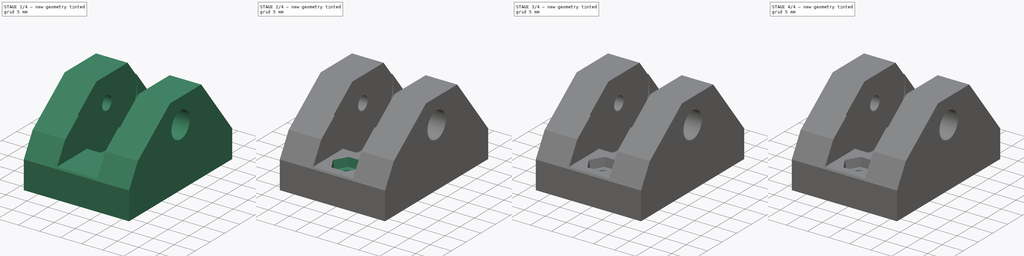
[diagram: build sequence overview — one tinted view per stage of 4, left to right]
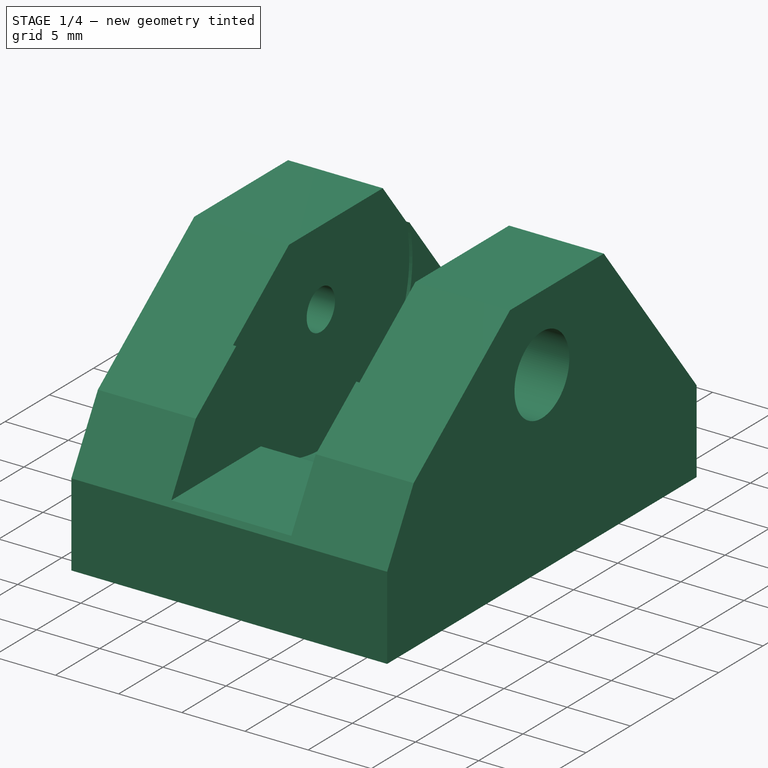
[diagram: stage 1 of 4 — iso view after this stage's code; geometry added in this stage tinted green]
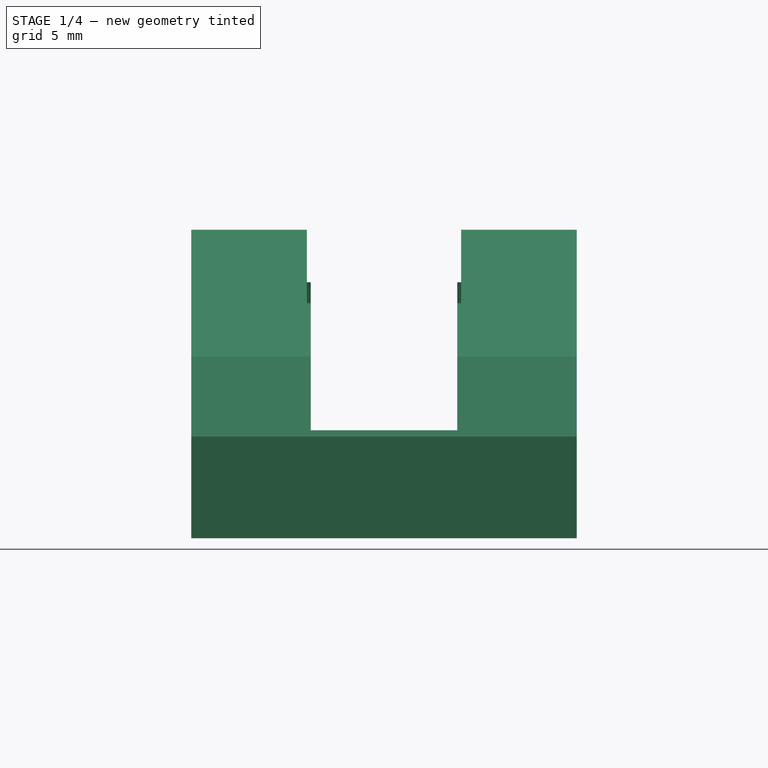
[diagram: stage 1 of 4 — front view after this stage's code; geometry added in this stage tinted green]
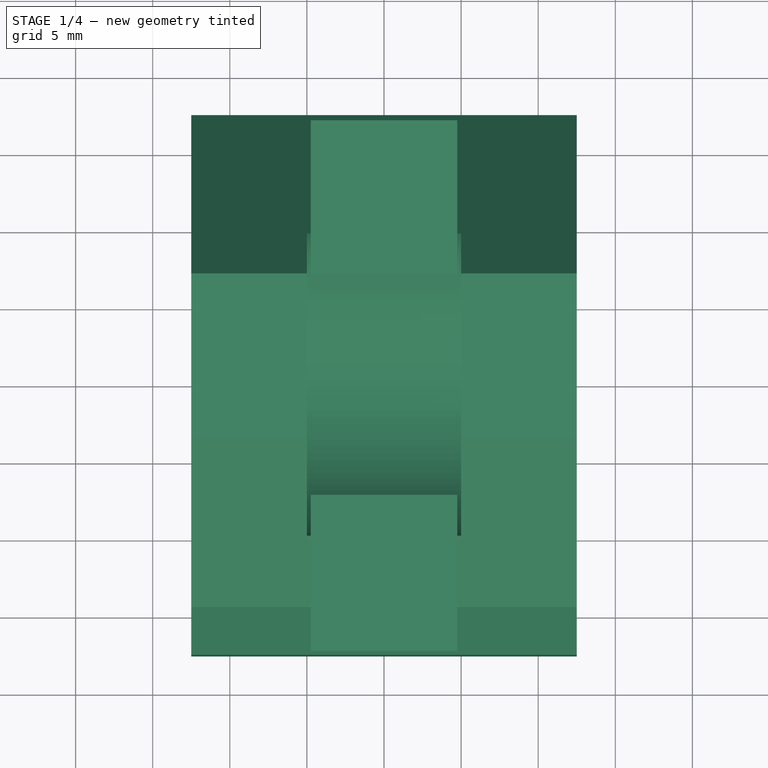
[diagram: stage 1 of 4 — top view after this stage's code; geometry added in this stage tinted green]
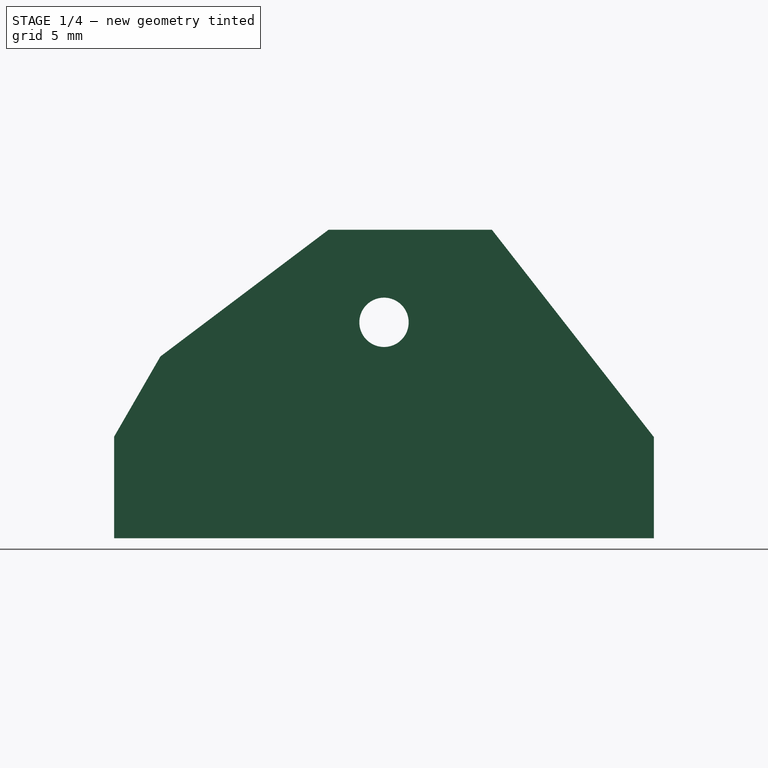
[diagram: stage 1 of 4 — right view after this stage's code; geometry added in this stage tinted green]
FCSTD DOCUMENT  (FreeCAD 0.22R38231 (Git))
Label: _Y-Belt_Idler
License: Creative Commons Attribution 4.0
LicenseURL: https://creativecommons.org/licenses/by/4.0/
objects: Sketcher::SketchObject×15, PartDesign::Pocket×5, PartDesign::Groove×3, PartDesign::SubtractiveLoft×3, PartDesign::Pad×1, PartDesign::Body×1
note: 52 computed .brp shape members not serialized (recipe doc carries the construction recipe); baked Part::Feature solids carry a one-line shape summary decoded from their .brp

FEATURE [Sketcher::SketchObject] Sketch
  AttachmentSupport = -> [YZ_Plane]
  FullyConstrained = true
  MapMode = 5
  Placement = pos=(0,0,0) rot=(0.57735,0.57735,0.57735;2.0944rad)
  sketch-geometry (8):
    g0: LineSegment StartX=-17.5 StartY=0 StartZ=0 EndX=-17.5 EndY=6.59011 EndZ=0
    g1: LineSegment StartX=-17.5 StartY=6.59011 StartZ=0 EndX=-14.5 EndY=11.7863 EndZ=0
    g2: LineSegment StartX=-14.5 StartY=11.7863 StartZ=0 EndX=-3.6 EndY=20 EndZ=0
    g3: LineSegment StartX=-3.6 StartY=20 StartZ=0 EndX=7 EndY=20 EndZ=0
    g4: LineSegment StartX=7 StartY=20 StartZ=0 EndX=17.5 EndY=6.56061 EndZ=0
    g5: LineSegment StartX=17.5 StartY=6.56061 StartZ=0 EndX=17.5 EndY=0 EndZ=0
    g6: LineSegment StartX=17.5 StartY=0 StartZ=0 EndX=-17.5 EndY=0 EndZ=0
    g7: Circle CenterX=0 CenterY=14 CenterZ=0 NormalX=0 NormalY=0 NormalZ=1 AngleXU=0 Radius=1.6
  constraints (23):
    c: PointOnObject(g0,g-1)
    c: Vertical(g0)
    c: Coincident(g0,g1)
    c: Coincident(g1,g2)
    c: Coincident(g2,g3)
    c: Horizontal(g3)
    c: Coincident(g3,g4)
    c: Coincident(g4,g5)
    c: Vertical(g5)
    c: Coincident(g5,g6)
    c: Coincident(g6,g0)
    c: Diameter(g7) = 3.2
    c: PointOnObject(g7,g-2)
    c: DistanceY(g-1,g7) = 14
    c: Symmetric(g5,g0,g-2)
    c: DistanceX(g6,g6) = 35
    c: DistanceX(g2,g-1) = 3.6
    c: DistanceY(g-1,g3) = 20
    c: DistanceX(g3,g3) = 10.6
    c: Angle(g3,g4) = 2.23402
    c: Angle(g2,g3) = 2.49582
    c: Angle(g1,g2) = 2.74017
    c: DistanceX(g0,g1) = 3
FEATURE [PartDesign::Pad] Pad
  Direction = (1,0,0)
  Length = 25
  Length2 = 10
  Midplane = true
  Placement = pos=(0,0,0) rot=(1,1,1;2.0944rad)
  Profile = -> Sketch
  ReferenceAxis = -> Sketch [N_Axis]
  Refine = true
  Suppressed = false
  Type = 0
FEATURE [Sketcher::SketchObject] Sketch001
  AttachmentSupport = -> [XZ_Plane]
  FullyConstrained = true
  MapMode = 5
  Placement = pos=(0,0,0) rot=(1,0,0;1.5708rad)
  sketch-geometry (4):
    g0: LineSegment StartX=4.75 StartY=21 StartZ=0 EndX=4.75 EndY=7 EndZ=0
    g1: LineSegment StartX=4.75 StartY=7 StartZ=0 EndX=-4.75 EndY=7 EndZ=0
    g2: LineSegment StartX=-4.75 StartY=7 StartZ=0 EndX=-4.75 EndY=21 EndZ=0
    g3: LineSegment StartX=-4.75 StartY=21 StartZ=0 EndX=4.75 EndY=21 EndZ=0
  constraints (11):
    c: Coincident(g0,g1)
    c: Coincident(g1,g2)
    c: Coincident(g2,g3)
    c: Coincident(g3,g0)
    c: Vertical(g0)
    c: Vertical(g2)
    c: Symmetric(g2,g0,g-2)
    c: Horizontal(g1)
    c: DistanceX(g3,g3) = 9.5
    c: DistanceY(g-1,g1) = 7
    c: DistanceY(g2,g2) = 14
FEATURE [PartDesign::Pocket] Pocket
  BaseFeature = -> Pad
  Direction = (0,1,-2e-16)
  Length = 5
  Length2 = 5
  Midplane = true
  Placement = pos=(0,0,0) rot=(1,1,1;2.0944rad)
  Profile = -> Sketch001
  ReferenceAxis = -> Sketch001 [N_Axis]
  Refine = true
  Suppressed = false
  Type = 1
FEATURE [Sketcher::SketchObject] Sketch002
  AttachmentOffset = pos=(0,0,14) rot=(0,0,1;0rad)
  AttachmentSupport = -> [XY_Plane]
  FullyConstrained = true
  MapMode = 5
  Placement = pos=(0,0,14) rot=(0,0,1;0rad)
  expr: .AttachmentOffset.Base.z = Sketch.Constraints[13]
  sketch-geometry (8):
    g0: LineSegment StartX=-5 StartY=0 StartZ=0 EndX=12.5 EndY=0 EndZ=0
    g1: LineSegment StartX=12.5 StartY=0 StartZ=0 EndX=12.5 EndY=3.1 EndZ=0
    g2: LineSegment StartX=12.5 StartY=3.1 StartZ=0 EndX=8 EndY=3.1 EndZ=0
    g3: LineSegment StartX=8 StartY=3.1 StartZ=0 EndX=8 EndY=1.6 EndZ=0
    g4: LineSegment StartX=8 StartY=1.6 StartZ=0 EndX=5 EndY=1.6 EndZ=0
    g5: LineSegment StartX=5 StartY=1.6 StartZ=0 EndX=5 EndY=10 EndZ=0
    g6: LineSegment StartX=5 StartY=10 StartZ=0 EndX=-5 EndY=10 EndZ=0
    g7: LineSegment StartX=-5 StartY=10 StartZ=0 EndX=-5 EndY=0 EndZ=0
  constraints (23):
    c: PointOnObject(g0,g-1)
    c: PointOnObject(g0,g-1)
    c: Coincident(g0,g1)
    c: Vertical(g1)
    c: Coincident(g1,g2)
    c: Horizontal(g2)
    c: Coincident(g2,g3)
    c: Coincident(g3,g4)
    c: Horizontal(g4)
    c: Coincident(g4,g5)
    c: Vertical(g5)
    c: Coincident(g5,g6)
    c: Coincident(g6,g7)
    c: Coincident(g7,g0)
    c: Vertical(g7)
    c: DistanceY(g-1,g4) = 1.6
    c: Vertical(g3)
    c: DistanceX(g-1,g0) = 12.5
    c: DistanceX(g2,g2) = 4.5
    c: DistanceY(g1,g1) = 3.1
    c: Symmetric(g6,g5,g-2)
    c: DistanceX(g6,g6) = 10
    c: DistanceY(g7,g7) = 10
FEATURE [PartDesign::Groove] Groove
  Angle = 360
  Angle2 = 60
  Axis = (1,0,0)
  Base = (-5,0,14)
  BaseFeature = -> Pocket
  Placement = pos=(0,0,0) rot=(1,1,1;2.0944rad)
  Profile = -> Sketch002
  ReferenceAxis = -> Sketch002 [Edge1]
  Refine = true
  Suppressed = false
  Type = 0
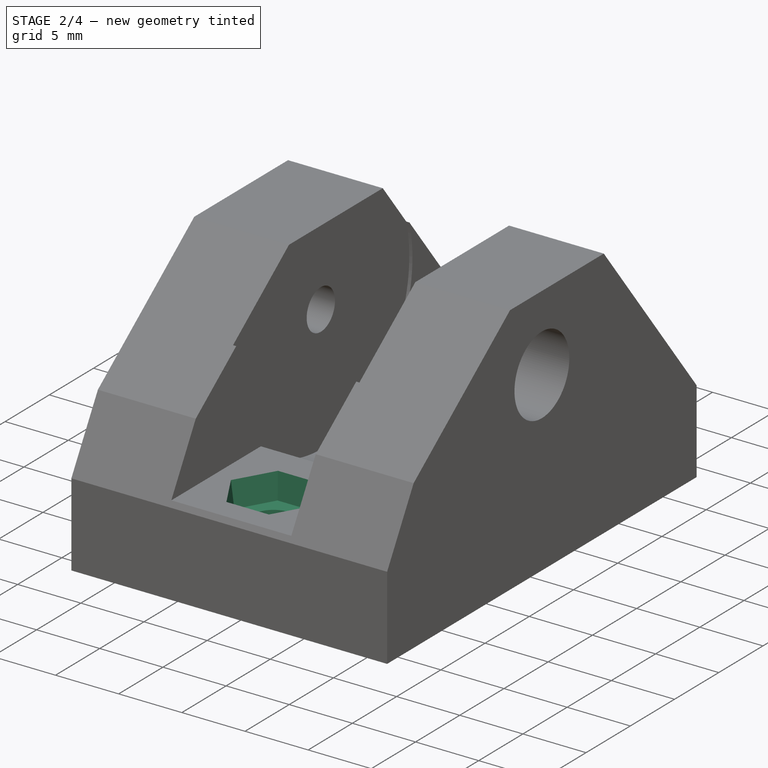
[diagram: stage 2 of 4 — iso view after this stage's code; geometry added in this stage tinted green]
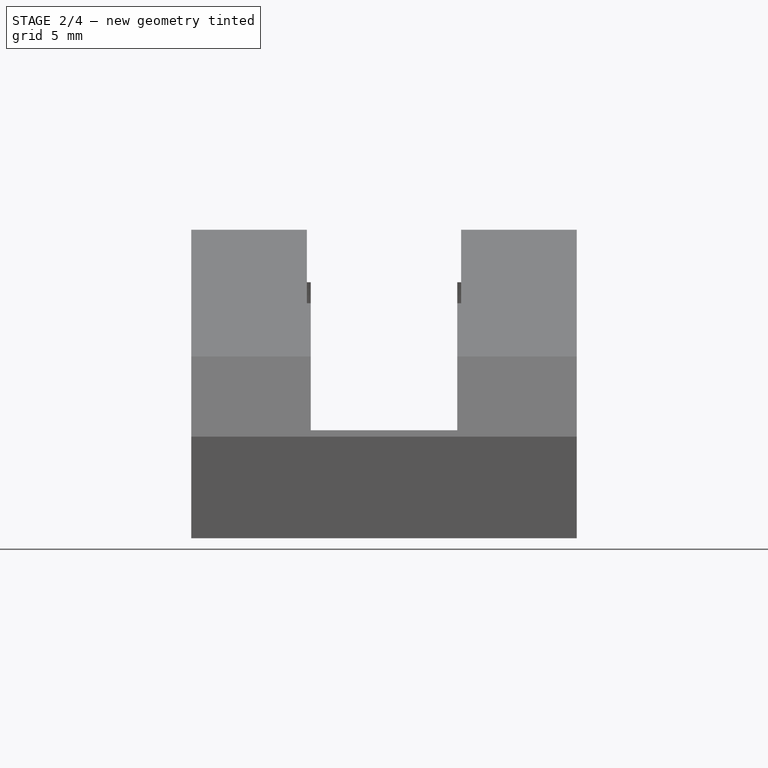
[diagram: stage 2 of 4 — front view after this stage's code; geometry added in this stage tinted green]
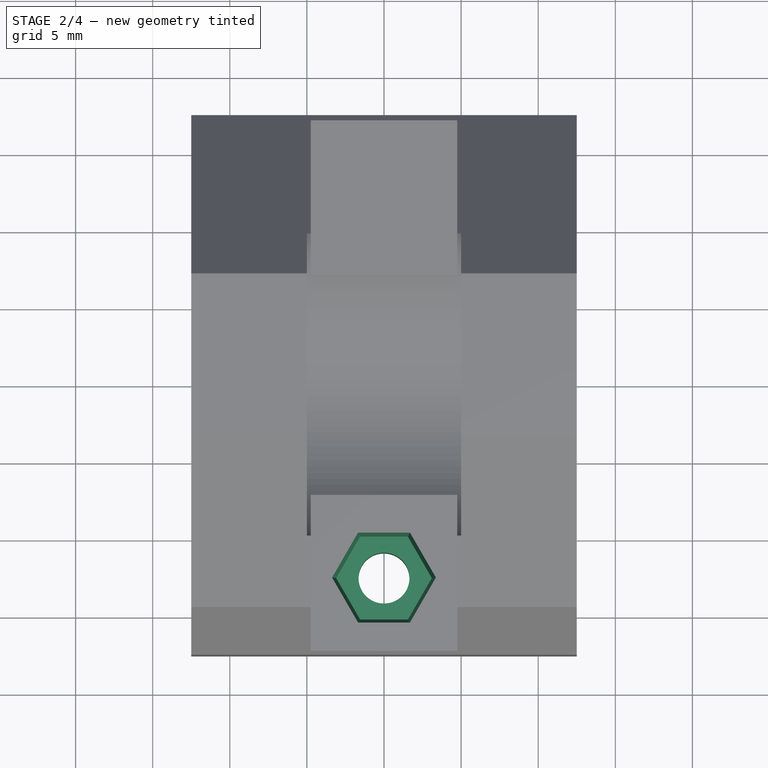
[diagram: stage 2 of 4 — top view after this stage's code; geometry added in this stage tinted green]
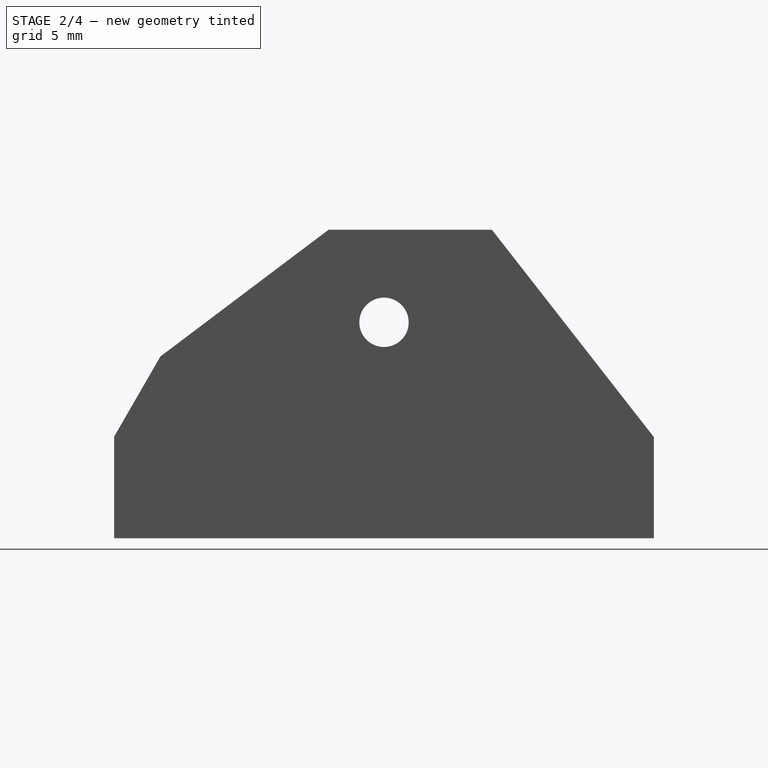
[diagram: stage 2 of 4 — right view after this stage's code; geometry added in this stage tinted green]
FEATURE [Sketcher::SketchObject] Sketch003
  AttachmentOffset = pos=(0,0,-12.5) rot=(0,0,1;0rad)
  AttachmentSupport = -> [YZ_Plane]
  FullyConstrained = true
  MapMode = 5
  Placement = pos=(-12.5,0,0) rot=(0.57735,0.57735,0.57735;2.0944rad)
  expr: .AttachmentOffset.Base.z = -Pad.Length / 2
  expr: Constraints[18] = Sketch.Constraints[13]
  sketch-geometry (7):
    g0: LineSegment StartX=-3.66271 StartY=14 StartZ=0 EndX=-1.83136 EndY=10.828 EndZ=0
    g1: LineSegment StartX=-1.83136 StartY=10.828 StartZ=0 EndX=1.83136 EndY=10.828 EndZ=0
    g2: LineSegment StartX=1.83136 StartY=10.828 StartZ=0 EndX=3.66271 EndY=14 EndZ=0
    g3: LineSegment StartX=3.66271 StartY=14 StartZ=0 EndX=1.83136 EndY=17.172 EndZ=0
    g4: LineSegment StartX=1.83136 StartY=17.172 StartZ=0 EndX=-1.83136 EndY=17.172 EndZ=0
    g5: LineSegment StartX=-1.83136 StartY=17.172 StartZ=0 EndX=-3.66271 EndY=14 EndZ=0
    g6: Circle CenterX=0 CenterY=14 CenterZ=0 NormalX=0 NormalY=0 NormalZ=1 AngleXU=0 Radius=3.66271
  constraints (17):
    c: Coincident(g0,g1)
    c: Coincident(g1,g2)
    c: Coincident(g2,g3)
    c: Coincident(g3,g4)
    c: Coincident(g4,g5)
    c: Coincident(g5,g0)
    c: Equal(g0, g1-g5) x5
    c: PointOnObject(g0,g6)
    c: PointOnObject(g1,g6)
    c: PointOnObject(g2,g6)
    c: PointOnObject(g3,g6)
    c: PointOnObject(g4,g6)
    c: PointOnObject(g5,g6)
    c: PointOnObject(g6,g-2)
    c: DistanceY(g-1,g6) = 14
    c: Horizontal(g4)
    c: DistanceY(g1,g3) = 6.344
FEATURE [Sketcher::SketchObject] Sketch004
  AttachmentOffset = pos=(0,0,-10) rot=(0,0,1;0rad)
  AttachmentSupport = -> [YZ_Plane]
  FullyConstrained = true
  MapMode = 5
  Placement = pos=(-10,0,0) rot=(0.57735,0.57735,0.57735;2.0944rad)
  expr: .AttachmentOffset.Base.z = -Pad.Length / 2 + 2.5 mm
  expr: Constraints[19] = Sketch.Constraints[13]
  sketch-geometry (7):
    g0: LineSegment StartX=-1.5499 StartY=16.6845 StartZ=0 EndX=-3.09979 EndY=14 EndZ=0
    g1: LineSegment StartX=-3.09979 StartY=14 StartZ=0 EndX=-1.5499 EndY=11.3155 EndZ=0
    g2: LineSegment StartX=-1.5499 StartY=11.3155 StartZ=0 EndX=1.5499 EndY=11.3155 EndZ=0
    g3: LineSegment StartX=1.5499 StartY=11.3155 StartZ=0 EndX=3.09979 EndY=14 EndZ=0
    g4: LineSegment StartX=3.09979 StartY=14 StartZ=0 EndX=1.5499 EndY=16.6845 EndZ=0
    g5: LineSegment StartX=1.5499 StartY=16.6845 StartZ=0 EndX=-1.5499 EndY=16.6845 EndZ=0
    g6: Circle CenterX=0 CenterY=14 CenterZ=0 NormalX=0 NormalY=0 NormalZ=1 AngleXU=0 Radius=3.09979
  constraints (17):
    c: Coincident(g0,g1)
    c: Coincident(g1,g2)
    c: Coincident(g2,g3)
    c: Coincident(g3,g4)
    c: Coincident(g4,g5)
    c: Coincident(g5,g0)
    c: Equal(g0, g1-g5) x5
    c: PointOnObject(g0,g6)
    c: PointOnObject(g1,g6)
    c: PointOnObject(g2,g6)
    c: PointOnObject(g3,g6)
    c: PointOnObject(g4,g6)
    c: PointOnObject(g5,g6)
    c: PointOnObject(g6,g-2)
    c: Horizontal(g5)
    c: DistanceY(g-1,g6) = 14
    c: DistanceY(g1,g0) = 5.369
FEATURE [PartDesign::SubtractiveLoft] SubtractiveLoft
  BaseFeature = -> Groove
  Closed = false
  Placement = pos=(0,0,0) rot=(1,1,1;2.0944rad)
  Profile = -> Sketch004
  Refine = true
  Ruled = false
  Sections = -> [Sketch003]
  Suppressed = false
FEATURE [Sketcher::SketchObject] Sketch005
  AttachmentOffset = pos=(0,0,7) rot=(0,0,1;0rad)
  AttachmentSupport = -> [XY_Plane]
  FullyConstrained = true
  MapMode = 5
  Placement = pos=(0,0,7) rot=(0,0,1;0rad)
  sketch-geometry (7):
    g0: LineSegment StartX=-1.68298 StartY=-9.585 StartZ=0 EndX=-3.36595 EndY=-12.5 EndZ=0
    g1: LineSegment StartX=-3.36595 StartY=-12.5 StartZ=0 EndX=-1.68298 EndY=-15.415 EndZ=0
    g2: LineSegment StartX=-1.68298 StartY=-15.415 StartZ=0 EndX=1.68298 EndY=-15.415 EndZ=0
    g3: LineSegment StartX=1.68298 StartY=-15.415 StartZ=0 EndX=3.36595 EndY=-12.5 EndZ=0
    g4: LineSegment StartX=3.36595 StartY=-12.5 StartZ=0 EndX=1.68298 EndY=-9.585 EndZ=0
    g5: LineSegment StartX=1.68298 StartY=-9.585 StartZ=0 EndX=-1.68298 EndY=-9.585 EndZ=0
    g6: Circle CenterX=0 CenterY=-12.5 CenterZ=0 NormalX=0 NormalY=0 NormalZ=1 AngleXU=0 Radius=3.36595
  constraints (17):
    c: Coincident(g0,g1)
    c: Coincident(g1,g2)
    c: Coincident(g2,g3)
    c: Coincident(g3,g4)
    c: Coincident(g4,g5)
    c: Coincident(g5,g0)
    c: Equal(g0, g1-g5) x5
    c: PointOnObject(g0,g6)
    c: PointOnObject(g1,g6)
    c: PointOnObject(g2,g6)
    c: PointOnObject(g3,g6)
    c: PointOnObject(g4,g6)
    c: PointOnObject(g5,g6)
    c: PointOnObject(g6,g-2)
    c: Horizontal(g5)
    c: DistanceY(g6,g-1) = 12.5
    c: DistanceY(g2,g4) = 5.83
FEATURE [Sketcher::SketchObject] Sketch006
  AttachmentOffset = pos=(0,0,5) rot=(0,0,1;0rad)
  AttachmentSupport = -> [XY_Plane]
  FullyConstrained = true
  MapMode = 5
  Placement = pos=(0,0,5) rot=(0,0,1;0rad)
  sketch-geometry (7):
    g0: LineSegment StartX=-1.55019 StartY=-9.815 StartZ=0 EndX=-3.10037 EndY=-12.5 EndZ=0
    g1: LineSegment StartX=-3.10037 StartY=-12.5 StartZ=0 EndX=-1.55019 EndY=-15.185 EndZ=0
    g2: LineSegment StartX=-1.55019 StartY=-15.185 StartZ=0 EndX=1.55019 EndY=-15.185 EndZ=0
    g3: LineSegment StartX=1.55019 StartY=-15.185 StartZ=0 EndX=3.10037 EndY=-12.5 EndZ=0
    g4: LineSegment StartX=3.10037 StartY=-12.5 StartZ=0 EndX=1.55019 EndY=-9.815 EndZ=0
    g5: LineSegment StartX=1.55019 StartY=-9.815 StartZ=0 EndX=-1.55019 EndY=-9.815 EndZ=0
    g6: Circle CenterX=0 CenterY=-12.5 CenterZ=0 NormalX=0 NormalY=0 NormalZ=1 AngleXU=0 Radius=3.10037
  constraints (17):
    c: Coincident(g0,g1)
    c: Coincident(g1,g2)
    c: Coincident(g2,g3)
    c: Coincident(g3,g4)
    c: Coincident(g4,g5)
    c: Coincident(g5,g0)
    c: Equal(g0, g1-g5) x5
    c: PointOnObject(g0,g6)
    c: PointOnObject(g1,g6)
    c: PointOnObject(g2,g6)
    c: PointOnObject(g3,g6)
    c: PointOnObject(g4,g6)
    c: PointOnObject(g5,g6)
    c: PointOnObject(g6,g-2)
    c: Horizontal(g5)
    c: DistanceY(g6,g-1) = 12.5
    c: DistanceY(g2,g4) = 5.37
FEATURE [PartDesign::SubtractiveLoft] SubtractiveLoft001
  BaseFeature = -> SubtractiveLoft
  Closed = false
  Placement = pos=(0,0,0) rot=(1,1,1;2.0944rad)
  Profile = -> Sketch006
  Refine = true
  Ruled = false
  Sections = -> [Sketch005]
  Suppressed = false
FEATURE [Sketcher::SketchObject] Sketch007
  AttachmentOffset = pos=(0,0,12.5) rot=(0,0,1;0rad)
  AttachmentSupport = -> [XZ_Plane]
  FullyConstrained = true
  MapMode = 5
  Placement = pos=(0,-12.5,2.8e-15) rot=(1,0,0;1.5708rad)
  sketch-geometry (5):
    g0: LineSegment StartX=0 StartY=7 StartZ=0 EndX=-1.65 EndY=7 EndZ=0
    g1: LineSegment StartX=-1.65 StartY=7 StartZ=0 EndX=-1.65 EndY=1 EndZ=0
    g2: LineSegment StartX=-2.07447 StartY=0 StartZ=0 EndX=0 EndY=0 EndZ=0
    g3: LineSegment StartX=0 StartY=0 StartZ=0 EndX=0 EndY=7 EndZ=0
    g4: LineSegment StartX=-1.65 StartY=1 StartZ=0 EndX=-2.07447 EndY=0 EndZ=0
  constraints (14):
    c: PointOnObject(g0,g-2)
    c: Horizontal(g0)
    c: Vertical(g1)
    c: Coincident(g2,g-1)
    c: Horizontal(g2)
    c: Coincident(g2,g3)
    c: Coincident(g3,g0)
    c: DistanceY(g3,g3) = 7
    c: Coincident(g0,g1)
    c: DistanceX(g1,g2) = 1.65
    c: Coincident(g4,g1)
    c: Coincident(g4,g2)
    c: DistanceY(g2,g1) = 1
    c: Angle(g1,g4) = 2.74017
FEATURE [PartDesign::Groove] Groove001
  Angle = 360
  Angle2 = 60
  Axis = (0,2e-16,1)
  Base = (0,-12.5,2.8e-15)
  BaseFeature = -> SubtractiveLoft001
  Placement = pos=(0,0,0) rot=(1,1,1;2.0944rad)
  Profile = -> Sketch007
  ReferenceAxis = -> Sketch007 [V_Axis]
  Refine = true
  Reversed = true
  Suppressed = false
  Type = 0
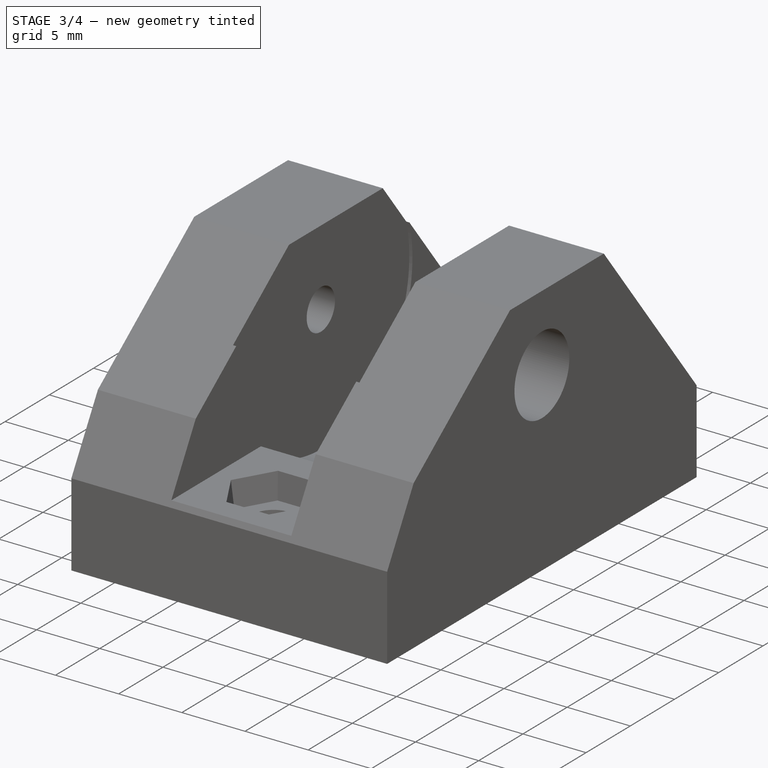
[diagram: stage 3 of 4 — iso view after this stage's code; geometry added in this stage tinted green]
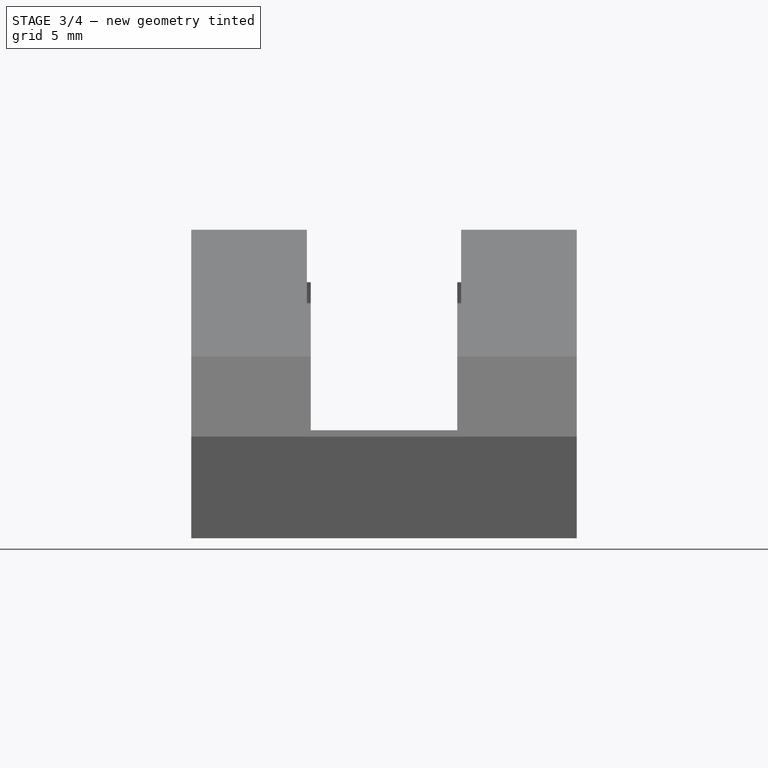
[diagram: stage 3 of 4 — front view after this stage's code; geometry added in this stage tinted green]
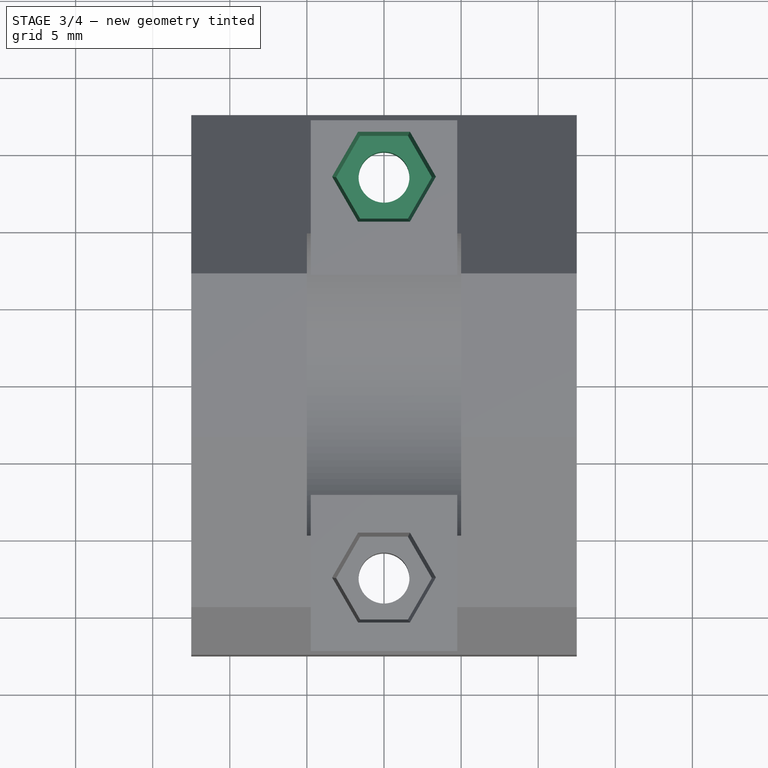
[diagram: stage 3 of 4 — top view after this stage's code; geometry added in this stage tinted green]
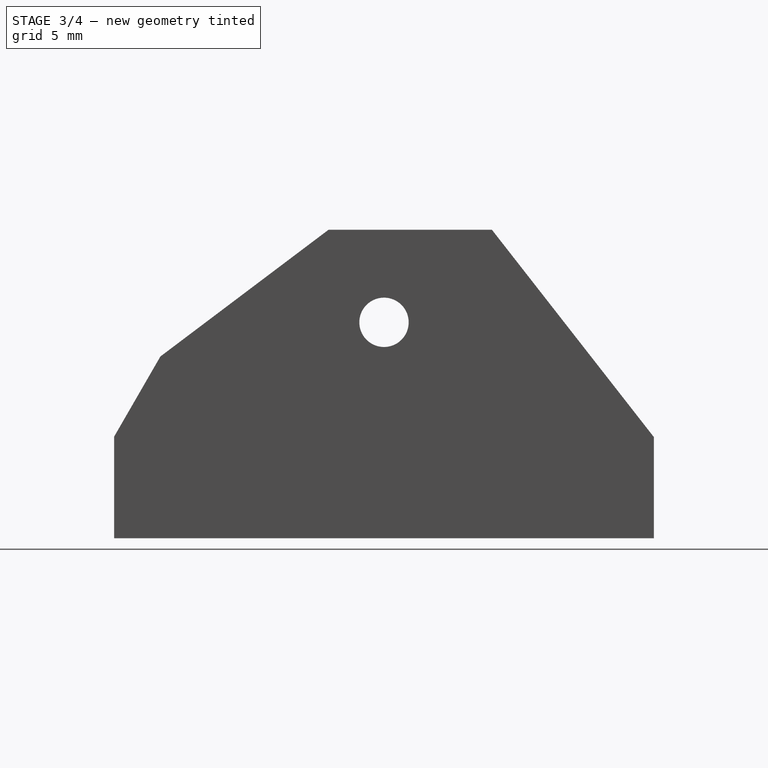
[diagram: stage 3 of 4 — right view after this stage's code; geometry added in this stage tinted green]
FEATURE [Sketcher::SketchObject] Sketch008
  AttachmentOffset = pos=(0,0,7) rot=(0,0,1;0rad)
  AttachmentSupport = -> [XY_Plane]
  FullyConstrained = true
  MapMode = 5
  Placement = pos=(0,0,7) rot=(0,0,1;0rad)
  sketch-geometry (7):
    g0: LineSegment StartX=-1.68298 StartY=16.415 StartZ=0 EndX=-3.36595 EndY=13.5 EndZ=0
    g1: LineSegment StartX=-3.36595 StartY=13.5 StartZ=0 EndX=-1.68298 EndY=10.585 EndZ=0
    g2: LineSegment StartX=-1.68298 StartY=10.585 StartZ=0 EndX=1.68298 EndY=10.585 EndZ=0
    g3: LineSegment StartX=1.68298 StartY=10.585 StartZ=0 EndX=3.36595 EndY=13.5 EndZ=0
    g4: LineSegment StartX=3.36595 StartY=13.5 StartZ=0 EndX=1.68298 EndY=16.415 EndZ=0
    g5: LineSegment StartX=1.68298 StartY=16.415 StartZ=0 EndX=-1.68298 EndY=16.415 EndZ=0
    g6: Circle CenterX=0 CenterY=13.5 CenterZ=0 NormalX=0 NormalY=0 NormalZ=1 AngleXU=0 Radius=3.36595
  constraints (17):
    c: Coincident(g0,g1)
    c: Coincident(g1,g2)
    c: Coincident(g2,g3)
    c: Coincident(g3,g4)
    c: Coincident(g4,g5)
    c: Coincident(g5,g0)
    c: Equal(g0, g1-g5) x5
    c: PointOnObject(g0,g6)
    c: PointOnObject(g1,g6)
    c: PointOnObject(g2,g6)
    c: PointOnObject(g3,g6)
    c: PointOnObject(g4,g6)
    c: PointOnObject(g5,g6)
    c: PointOnObject(g6,g-2)
    c: Horizontal(g5)
    c: DistanceY(g2,g4) = 5.83
    c: DistanceY(g-1,g6) = 13.5
FEATURE [Sketcher::SketchObject] Sketch009
  AttachmentOffset = pos=(0,0,5) rot=(0,0,1;0rad)
  AttachmentSupport = -> [XY_Plane]
  FullyConstrained = true
  MapMode = 5
  Placement = pos=(0,0,5) rot=(0,0,1;0rad)
  sketch-geometry (7):
    g0: LineSegment StartX=-1.55019 StartY=16.185 StartZ=0 EndX=-3.10037 EndY=13.5 EndZ=0
    g1: LineSegment StartX=-3.10037 StartY=13.5 StartZ=0 EndX=-1.55019 EndY=10.815 EndZ=0
    g2: LineSegment StartX=-1.55019 StartY=10.815 StartZ=0 EndX=1.55019 EndY=10.815 EndZ=0
    g3: LineSegment StartX=1.55019 StartY=10.815 StartZ=0 EndX=3.10037 EndY=13.5 EndZ=0
    g4: LineSegment StartX=3.10037 StartY=13.5 StartZ=0 EndX=1.55019 EndY=16.185 EndZ=0
    g5: LineSegment StartX=1.55019 StartY=16.185 StartZ=0 EndX=-1.55019 EndY=16.185 EndZ=0
    g6: Circle CenterX=0 CenterY=13.5 CenterZ=0 NormalX=0 NormalY=0 NormalZ=1 AngleXU=0 Radius=3.10037
  constraints (17):
    c: Coincident(g0,g1)
    c: Coincident(g1,g2)
    c: Coincident(g2,g3)
    c: Coincident(g3,g4)
    c: Coincident(g4,g5)
    c: Coincident(g5,g0)
    c: Equal(g0, g1-g5) x5
    c: PointOnObject(g0,g6)
    c: PointOnObject(g1,g6)
    c: PointOnObject(g2,g6)
    c: PointOnObject(g3,g6)
    c: PointOnObject(g4,g6)
    c: PointOnObject(g5,g6)
    c: PointOnObject(g6,g-2)
    c: Horizontal(g5)
    c: DistanceY(g2,g4) = 5.37
    c: DistanceY(g-1,g6) = 13.5
FEATURE [PartDesign::SubtractiveLoft] SubtractiveLoft002
  BaseFeature = -> Groove001
  Closed = false
  Placement = pos=(0,0,0) rot=(1,1,1;2.0944rad)
  Profile = -> Sketch008
  Refine = true
  Ruled = false
  Sections = -> [Sketch009]
  Suppressed = false
FEATURE [Sketcher::SketchObject] Sketch010
  AttachmentOffset = pos=(0,0,-13.5) rot=(0,0,1;0rad)
  AttachmentSupport = -> [XZ_Plane]
  FullyConstrained = true
  MapMode = 5
  Placement = pos=(0,13.5,-3e-15) rot=(1,0,0;1.5708rad)
  sketch-geometry (5):
    g0: LineSegment StartX=0 StartY=7 StartZ=0 EndX=-1.65 EndY=7 EndZ=0
    g1: LineSegment StartX=-1.65 StartY=7 StartZ=0 EndX=-1.65 EndY=1 EndZ=0
    g2: LineSegment StartX=-2.07447 StartY=0 StartZ=0 EndX=0 EndY=0 EndZ=0
    g3: LineSegment StartX=0 StartY=0 StartZ=0 EndX=0 EndY=7 EndZ=0
    g4: LineSegment StartX=-1.65 StartY=1 StartZ=0 EndX=-2.07447 EndY=0 EndZ=0
  constraints (14):
    c: PointOnObject(g0,g-2)
    c: Horizontal(g0)
    c: Vertical(g1)
    c: Coincident(g2,g-1)
    c: Horizontal(g2)
    c: Coincident(g2,g3)
    c: Coincident(g3,g0)
    c: DistanceY(g3,g3) = 7
    c: Coincident(g0,g1)
    c: DistanceX(g1,g2) = 1.65
    c: Coincident(g4,g1)
    c: Coincident(g4,g2)
    c: DistanceY(g2,g1) = 1
    c: Angle(g1,g4) = 2.74017
FEATURE [PartDesign::Groove] Groove002
  Angle = 360
  Angle2 = 60
  Axis = (0,2e-16,1)
  Base = (0,13.5,-3e-15)
  BaseFeature = -> SubtractiveLoft002
  Placement = pos=(0,0,0) rot=(1,1,1;2.0944rad)
  Profile = -> Sketch010
  ReferenceAxis = -> Sketch010 [V_Axis]
  Refine = true
  Reversed = true
  Suppressed = false
  Type = 0
FEATURE [Sketcher::SketchObject] Sketch011
  AttachmentSupport = -> [Groove002]
  FullyConstrained = true
  MapMode = 5
  Placement = pos=(3.9e-15,17.5,-2.33e-14) rot=(0.57735,0.57735,0.57735;4.18879rad)
  sketch-geometry (1):
    g0: Circle CenterX=3.5 CenterY=8.5 CenterZ=0 NormalX=0 NormalY=0 NormalZ=1 AngleXU=0 Radius=1.5
  constraints (3):
    c: DistanceY(g-1,g0) = 8.5
    c: DistanceX(g-1,g0) = 3.5
    c: Diameter(g0) = 3
FEATURE [PartDesign::Pocket] Pocket001
  BaseFeature = -> Groove002
  Direction = (0,-1,1.3e-15)
  Length = 1
  Length2 = 5
  Placement = pos=(0,0,0) rot=(1,1,1;2.0944rad)
  Profile = -> Sketch011
  ReferenceAxis = -> Sketch011 [N_Axis]
  Refine = true
  Suppressed = false
  Type = 0
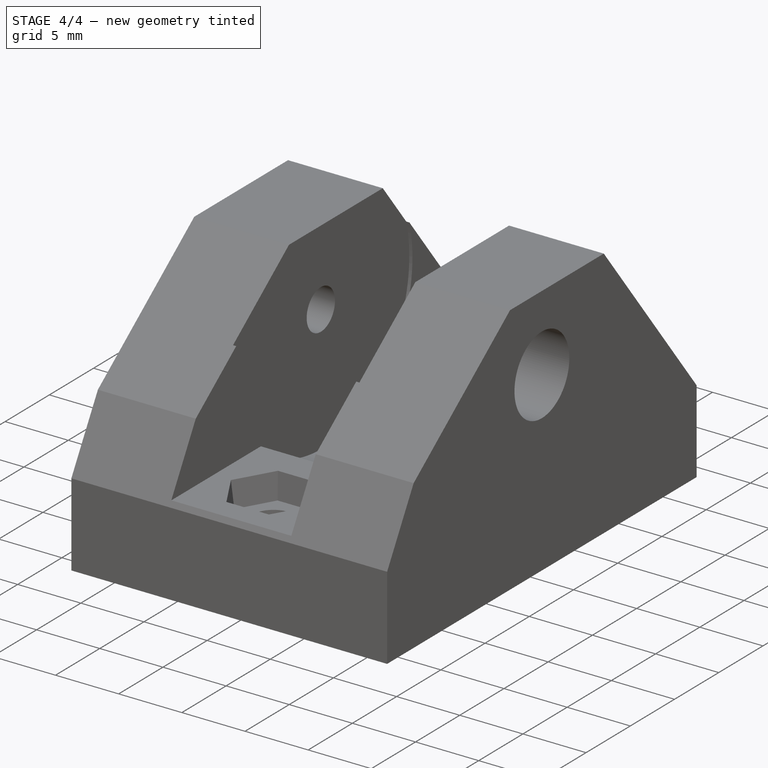
[diagram: stage 4 of 4 — iso view after this stage's code; geometry added in this stage tinted green]
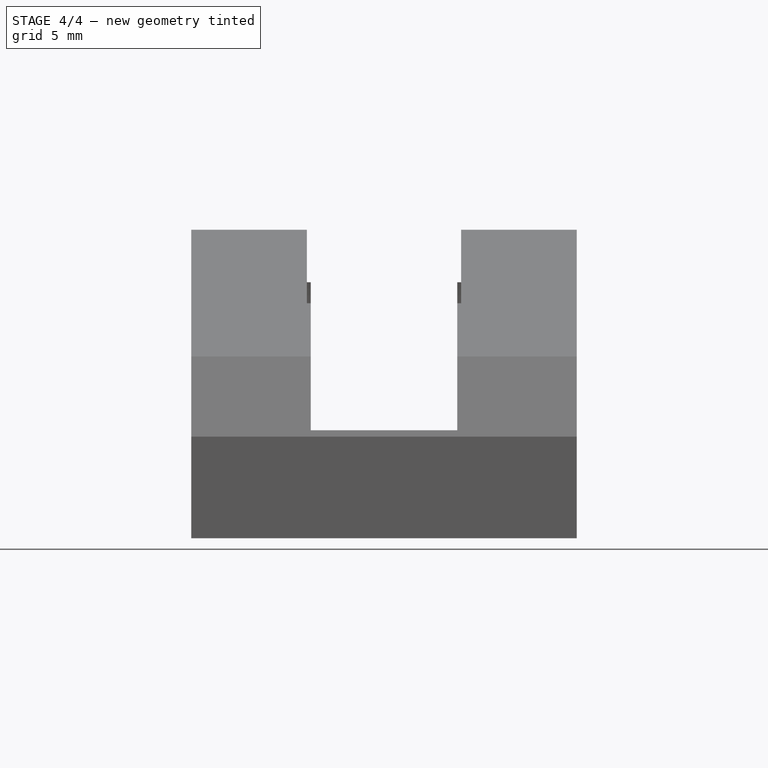
[diagram: stage 4 of 4 — front view after this stage's code; geometry added in this stage tinted green]
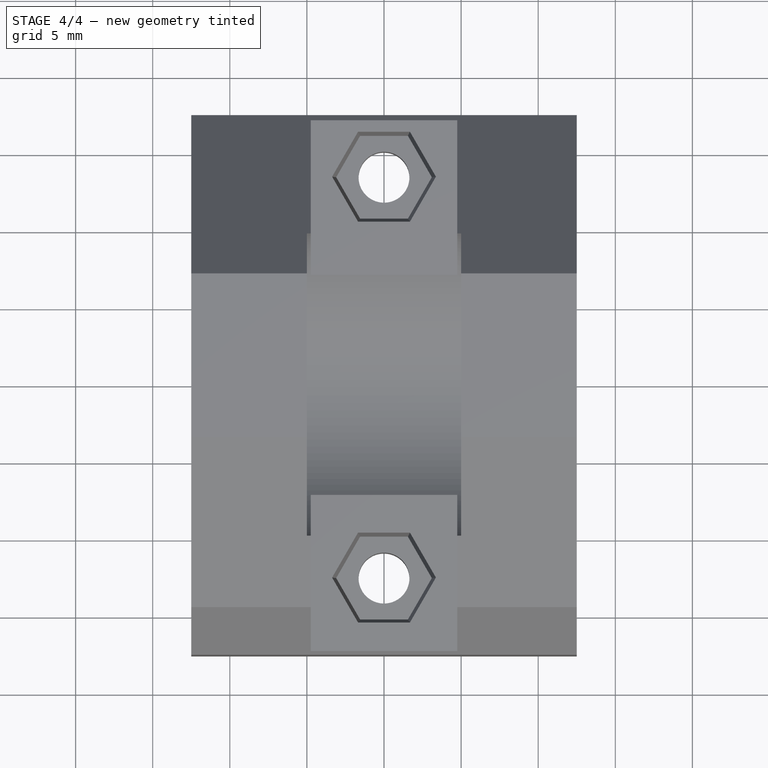
[diagram: stage 4 of 4 — top view after this stage's code; geometry added in this stage tinted green]
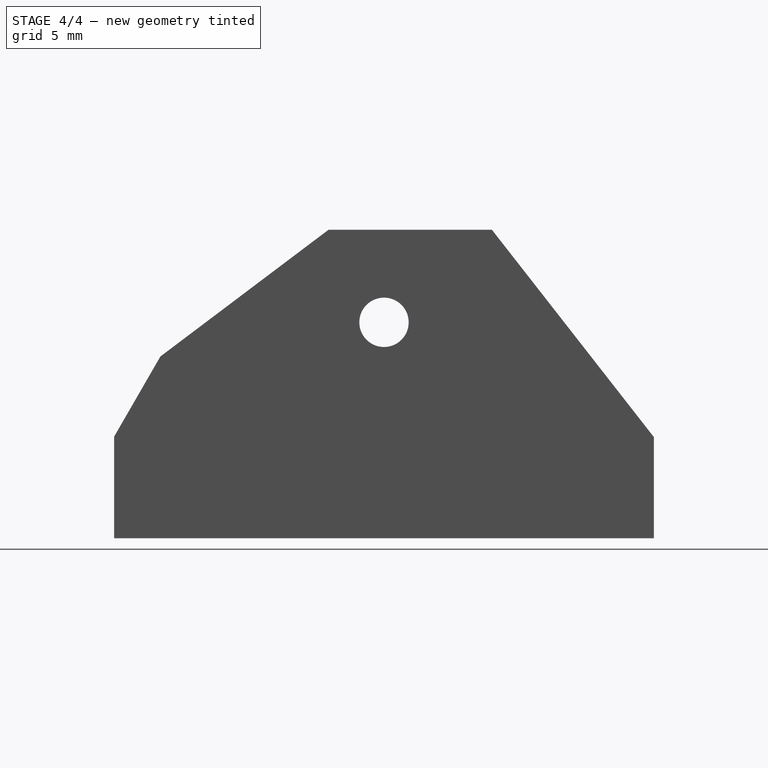
[diagram: stage 4 of 4 — right view after this stage's code; geometry added in this stage tinted green]
FEATURE [Sketcher::SketchObject] Sketch012
  AttachmentSupport = -> [YZ_Plane]
  FullyConstrained = true
  MapMode = 5
  Placement = pos=(0,0,0) rot=(0.57735,0.57735,0.57735;2.0944rad)
  sketch-geometry (8):
    g0: LineSegment StartX=-9.5 StartY=2 StartZ=0 EndX=-9.5 EndY=1 EndZ=0
    g1: LineSegment StartX=-9.5 StartY=1 StartZ=0 EndX=-9 EndY=1 EndZ=0
    g2: LineSegment StartX=-9 StartY=1 StartZ=0 EndX=-9 EndY=2 EndZ=0
    g3: LineSegment StartX=-9 StartY=2 StartZ=0 EndX=-9.5 EndY=2 EndZ=0
    g4: LineSegment StartX=7.5 StartY=2 StartZ=0 EndX=7.5 EndY=1 EndZ=0
    g5: LineSegment StartX=7.5 StartY=1 StartZ=0 EndX=8 EndY=1 EndZ=0
    g6: LineSegment StartX=8 StartY=1 StartZ=0 EndX=8 EndY=2 EndZ=0
    g7: LineSegment StartX=8 StartY=2 StartZ=0 EndX=7.5 EndY=2 EndZ=0
  constraints (24):
    c: Coincident(g0,g1)
    c: Coincident(g1,g2)
    c: Coincident(g2,g3)
    c: Coincident(g3,g0)
    c: Vertical(g0)
    c: Vertical(g2)
    c: Horizontal(g1)
    c: Horizontal(g3)
    c: Distance(g0,g2) = 0.5
    c: Distance(g1,g3) = 1
    c: DistanceX(g1,g-1) = 9
    c: DistanceY(g-1,g1) = 1
    c: Coincident(g4,g5)
    c: Coincident(g5,g6)
    c: Coincident(g6,g7)
    c: Coincident(g7,g4)
    c: Vertical(g4)
    c: Vertical(g6)
    c: Horizontal(g5)
    c: Horizontal(g7)
    c: Equal(g7,g3)
    c: DistanceX(g-1,g4) = 7.5
    c: Horizontal(g1,g4)
    c: Equal(g4,g2)
FEATURE [PartDesign::Pocket] Pocket002
  BaseFeature = -> Pocket001
  Direction = (-1,0,0)
  Length = 16
  Length2 = 5
  Midplane = true
  Placement = pos=(0,0,0) rot=(1,1,1;2.0944rad)
  Profile = -> Sketch012
  ReferenceAxis = -> Sketch012 [N_Axis]
  Refine = true
  Suppressed = false
  Type = 0
FEATURE [Sketcher::SketchObject] Sketch013
  AttachmentOffset = pos=(0,0,1) rot=(0,0,1;0rad)
  AttachmentSupport = -> [XY_Plane]
  FullyConstrained = true
  MapMode = 5
  Placement = pos=(0,0,1) rot=(0,0,1;0rad)
  sketch-geometry (16):
    g0: LineSegment StartX=-10 StartY=5 StartZ=0 EndX=-10 EndY=4.5 EndZ=0
    g1: LineSegment StartX=-10 StartY=4.5 StartZ=0 EndX=-7 EndY=4.5 EndZ=0
    g2: LineSegment StartX=-7 StartY=4.5 StartZ=0 EndX=-7 EndY=5 EndZ=0
    g3: LineSegment StartX=-7 StartY=5 StartZ=0 EndX=-10 EndY=5 EndZ=0
    g4: LineSegment StartX=8 StartY=5 StartZ=0 EndX=8 EndY=4.5 EndZ=0
    g5: LineSegment StartX=8 StartY=4.5 StartZ=0 EndX=11 EndY=4.5 EndZ=0
    g6: LineSegment StartX=11 StartY=4.5 StartZ=0 EndX=11 EndY=5 EndZ=0
    g7: LineSegment StartX=11 StartY=5 StartZ=0 EndX=8 EndY=5 EndZ=0
    g8: LineSegment StartX=8 StartY=-4 StartZ=0 EndX=8 EndY=-4.5 EndZ=0
    g9: LineSegment StartX=8 StartY=-4.5 StartZ=0 EndX=11 EndY=-4.5 EndZ=0
    g10: LineSegment StartX=11 StartY=-4.5 StartZ=0 EndX=11 EndY=-4 EndZ=0
    g11: LineSegment StartX=11 StartY=-4 StartZ=0 EndX=8 EndY=-4 EndZ=0
    g12: LineSegment StartX=-10 StartY=-4 StartZ=0 EndX=-10 EndY=-4.5 EndZ=0
    g13: LineSegment StartX=-10 StartY=-4.5 StartZ=0 EndX=-7 EndY=-4.5 EndZ=0
    g14: LineSegment StartX=-7 StartY=-4.5 StartZ=0 EndX=-7 EndY=-4 EndZ=0
    g15: LineSegment StartX=-7 StartY=-4 StartZ=0 EndX=-10 EndY=-4 EndZ=0
  constraints (48):
    c: Coincident(g0,g1)
    c: Coincident(g1,g2)
    c: Coincident(g2,g3)
    c: Coincident(g3,g0)
    c: Vertical(g0)
    c: Vertical(g2)
    c: Horizontal(g1)
    c: Horizontal(g3)
    c: Distance(g0,g2) = 3
    c: Distance(g1,g3) = 0.5
    c: Coincident(g4,g5)
    c: Coincident(g5,g6)
    c: Coincident(g6,g7)
    c: Coincident(g7,g4)
    c: Vertical(g4)
    c: Vertical(g6)
    c: Horizontal(g5)
    c: Horizontal(g7)
    c: Coincident(g8,g9)
    c: Coincident(g9,g10)
    c: Coincident(g10,g11)
    c: Coincident(g11,g8)
    c: Vertical(g8)
    c: Vertical(g10)
    c: Horizontal(g9)
    c: Horizontal(g11)
    c: Coincident(g12,g13)
    c: Coincident(g13,g14)
    c: Coincident(g14,g15)
    c: Coincident(g15,g12)
    c: Vertical(g12)
    c: Vertical(g14)
    c: Horizontal(g13)
    c: Horizontal(g15)
    c: Equal(g1,g5)
    c: Equal(g5,g11)
    c: Equal(g11,g15)
    c: Equal(g2,g4)
    c: Equal(g4,g8)
    c: Equal(g8,g14)
    c: Vertical(g1,g14)
    c: Vertical(g4,g8)
    c: Horizontal(g4,g1)
    c: Horizontal(g14,g8)
    c: DistanceX(g1,g-1) = 7
    c: DistanceX(g-1,g4) = 8
    c: DistanceY(g-1,g5) = 4.5
    c: DistanceY(g10,g-1) = 4
FEATURE [PartDesign::Pocket] Pocket003
  BaseFeature = -> Pocket002
  Direction = (0,0,-1)
  Length = 17
  Length2 = 5
  Placement = pos=(0,0,0) rot=(1,1,1;2.0944rad)
  Profile = -> Sketch013
  ReferenceAxis = -> Sketch013 [N_Axis]
  Refine = true
  Reversed = true
  Suppressed = false
  Type = 0
FEATURE [Sketcher::SketchObject] Sketch014
  AttachmentOffset = pos=(0,0,1) rot=(0,0,1;0rad)
  AttachmentSupport = -> [XY_Plane]
  FullyConstrained = true
  MapMode = 5
  Placement = pos=(0,0,1) rot=(0,0,1;0rad)
  sketch-geometry (16):
    g0: LineSegment StartX=-10 StartY=7 StartZ=0 EndX=-10 EndY=6.5 EndZ=0
    g1: LineSegment StartX=-10 StartY=6.5 StartZ=0 EndX=-7 EndY=6.5 EndZ=0
    g2: LineSegment StartX=-7 StartY=6.5 StartZ=0 EndX=-7 EndY=7 EndZ=0
    g3: LineSegment StartX=-7 StartY=7 StartZ=0 EndX=-10 EndY=7 EndZ=0
    g4: LineSegment StartX=8 StartY=7 StartZ=0 EndX=8 EndY=6.5 EndZ=0
    g5: LineSegment StartX=8 StartY=6.5 StartZ=0 EndX=11 EndY=6.5 EndZ=0
    g6: LineSegment StartX=11 StartY=6.5 StartZ=0 EndX=11 EndY=7 EndZ=0
    g7: LineSegment StartX=11 StartY=7 StartZ=0 EndX=8 EndY=7 EndZ=0
    g8: LineSegment StartX=8 StartY=-6.5 StartZ=0 EndX=8 EndY=-6 EndZ=0
    g9: LineSegment StartX=8 StartY=-6 StartZ=0 EndX=11 EndY=-6 EndZ=0
    g10: LineSegment StartX=11 StartY=-6 StartZ=0 EndX=11 EndY=-6.5 EndZ=0
    g11: LineSegment StartX=11 StartY=-6.5 StartZ=0 EndX=8 EndY=-6.5 EndZ=0
    g12: LineSegment StartX=-10 StartY=-6.5 StartZ=0 EndX=-10 EndY=-6 EndZ=0
    g13: LineSegment StartX=-10 StartY=-6 StartZ=0 EndX=-7 EndY=-6 EndZ=0
    g14: LineSegment StartX=-7 StartY=-6 StartZ=0 EndX=-7 EndY=-6.5 EndZ=0
    g15: LineSegment StartX=-7 StartY=-6.5 StartZ=0 EndX=-10 EndY=-6.5 EndZ=0
  constraints (48):
    c: Coincident(g0,g1)
    c: Coincident(g1,g2)
    c: Coincident(g2,g3)
    c: Coincident(g3,g0)
    c: Vertical(g0)
    c: Vertical(g2)
    c: Horizontal(g1)
    c: Horizontal(g3)
    c: Distance(g0,g2) = 3
    c: Distance(g1,g3) = 0.5
    c: Coincident(g4,g5)
    c: Coincident(g5,g6)
    c: Coincident(g6,g7)
    c: Coincident(g7,g4)
    c: Vertical(g4)
    c: Vertical(g6)
    c: Horizontal(g5)
    c: Horizontal(g7)
    c: Coincident(g8,g9)
    c: Coincident(g9,g10)
    c: Coincident(g10,g11)
    c: Coincident(g11,g8)
    c: Vertical(g8)
    c: Vertical(g10)
    c: Horizontal(g9)
    c: Horizontal(g11)
    c: Coincident(g12,g13)
    c: Coincident(g13,g14)
    c: Coincident(g14,g15)
    c: Coincident(g15,g12)
    c: Vertical(g12)
    c: Vertical(g14)
    c: Horizontal(g13)
    c: Horizontal(g15)
    c: Equal(g1,g5)
    c: Equal(g5,g11)
    c: Equal(g11,g15)
    c: Equal(g2,g4)
    c: Equal(g4,g8)
    c: Equal(g8,g14)
    c: Vertical(g1,g14)
    c: Vertical(g4,g8)
    c: Horizontal(g4,g1)
    c: Horizontal(g14,g8)
    c: DistanceX(g1,g-1) = 7
    c: DistanceX(g-1,g4) = 8
    c: DistanceY(g-1,g5) = 6.5
    c: DistanceY(g10,g-1) = 6.5
FEATURE [PartDesign::Pocket] Pocket004
  BaseFeature = -> Pocket003
  Direction = (0,0,-1)
  Length = 15
  Length2 = 5
  Placement = pos=(0,0,0) rot=(1,1,1;2.0944rad)
  Profile = -> Sketch014
  ReferenceAxis = -> Sketch014 [N_Axis]
  Refine = true
  Reversed = true
  Suppressed = false
  Type = 0
FEATURE [PartDesign::Body] Body  label="Y-Belt_Idler"
  AllowCompound = false
  Group = -> [Sketch,Pad,Sketch001,Pocket,Sketch002,Groove,Sketch003,Sketch004,SubtractiveLoft,Sketch005,Sketch006,SubtractiveLoft001,Sketch007,Groove001,Sketch008,Sketch009,SubtractiveLoft002,Sketch010,Groove002,Sketch011,Pocket001,Sketch012,Pocket002,Sketch013,Pocket003,Sketch014,Pocket004]
  Origin = -> Origin
  Tip = -> Pocket004
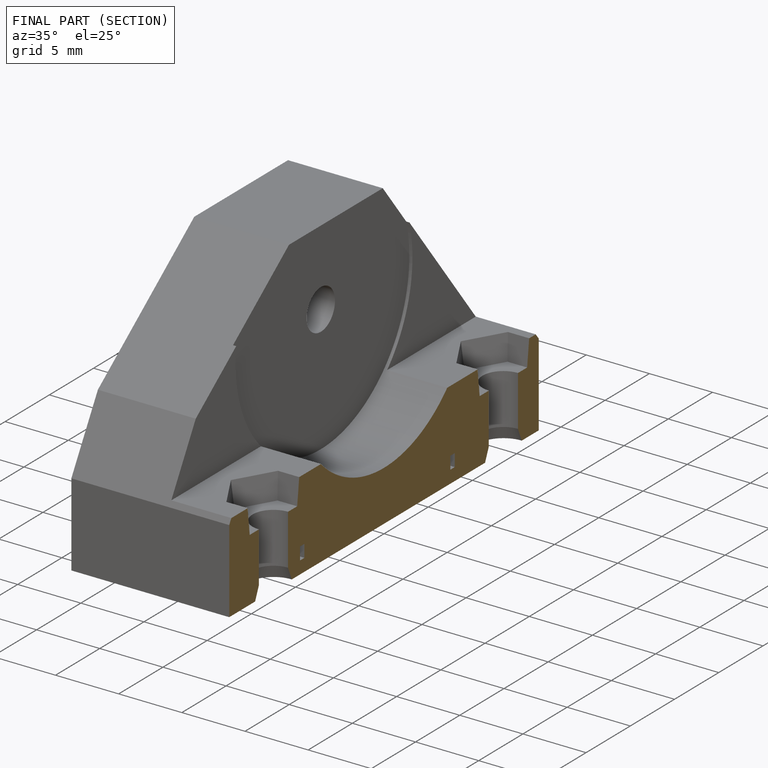
[diagram: finished part — half-section view (interior)]
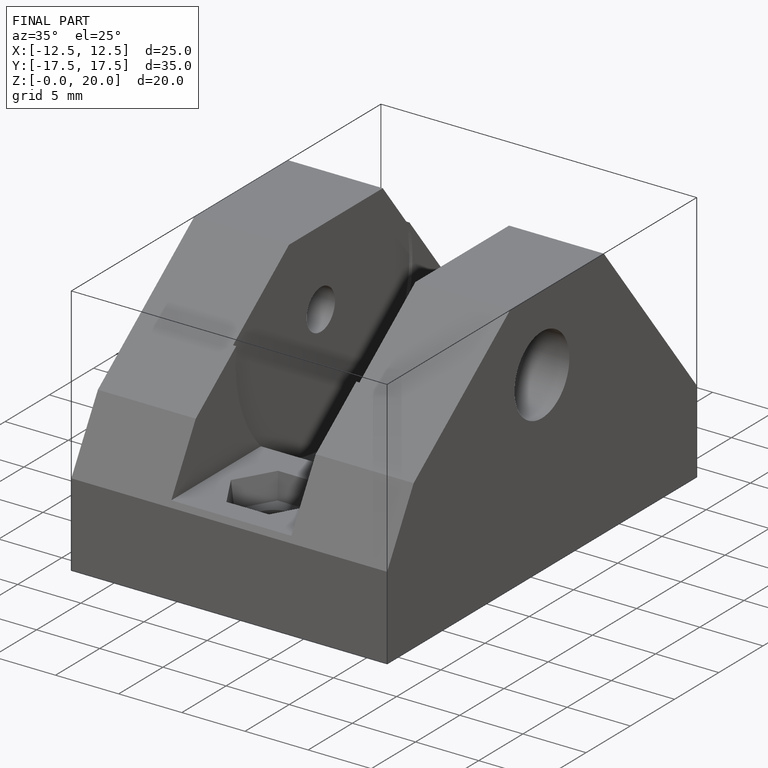
[diagram: finished part — iso view with bounding-box wireframe]
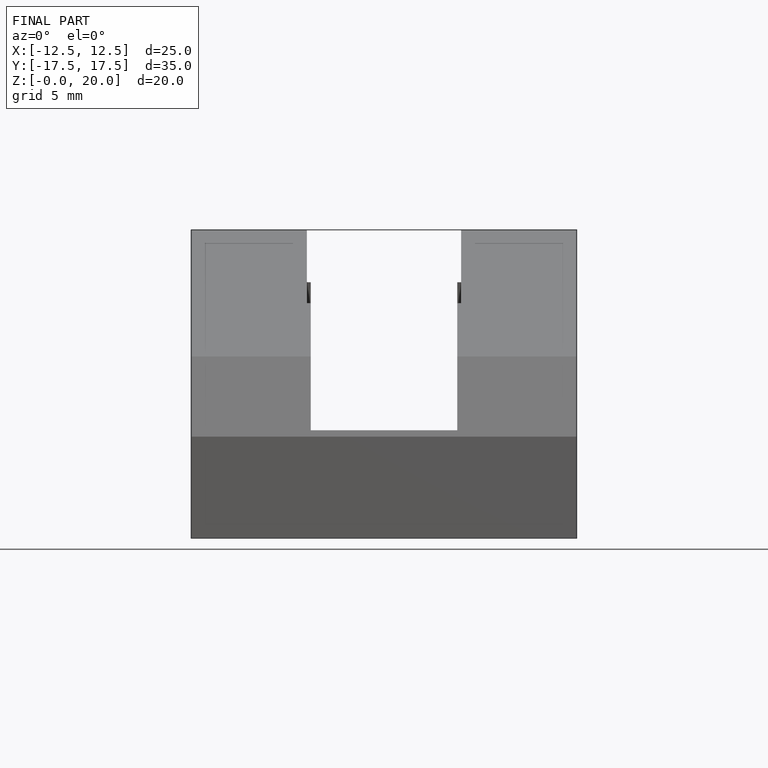
[diagram: finished part — front view with bounding-box wireframe]
